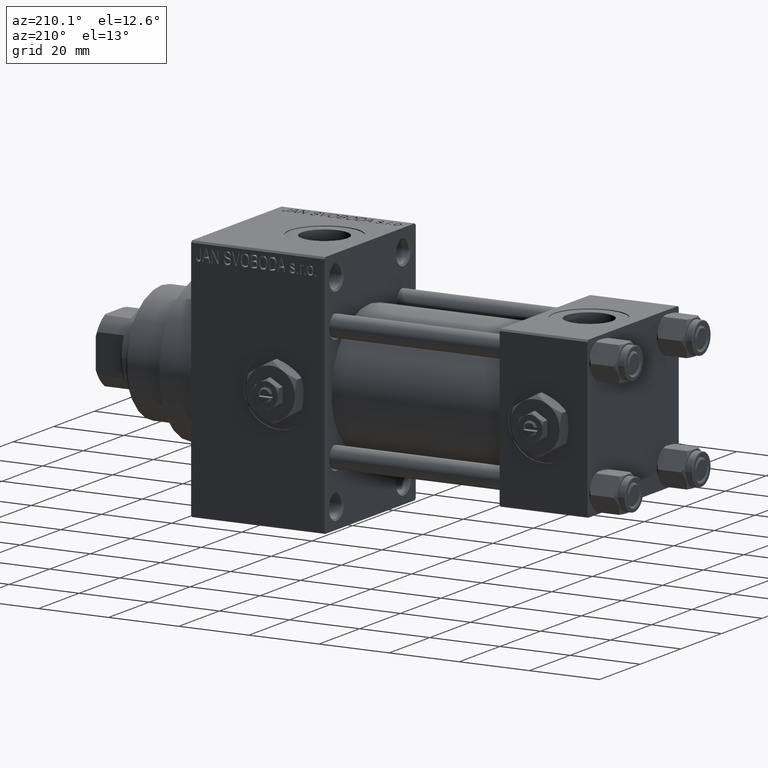
[diagram: clean part render]
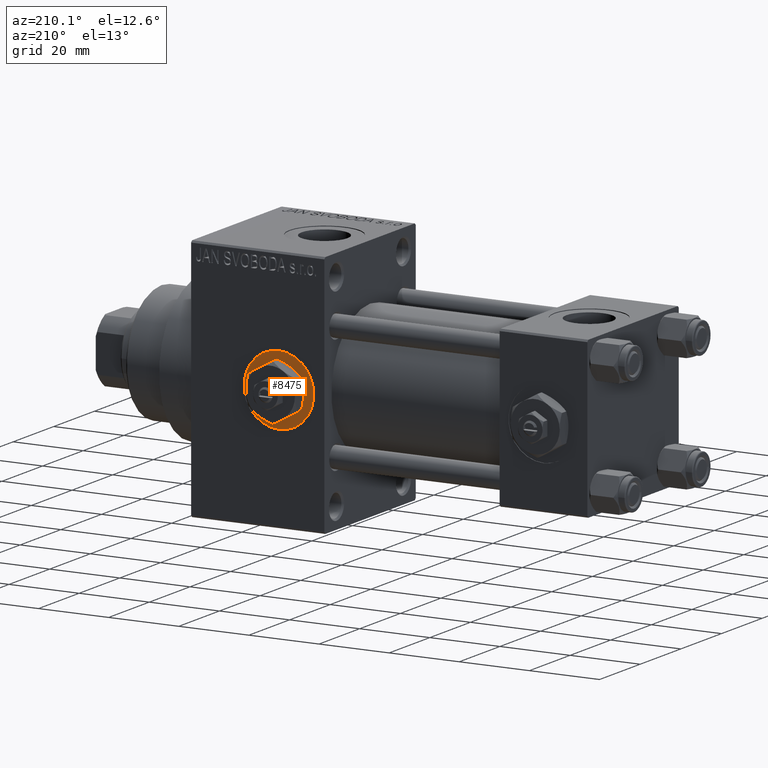
[diagram: same view with one face highlighted and labeled with its STEP entity id]
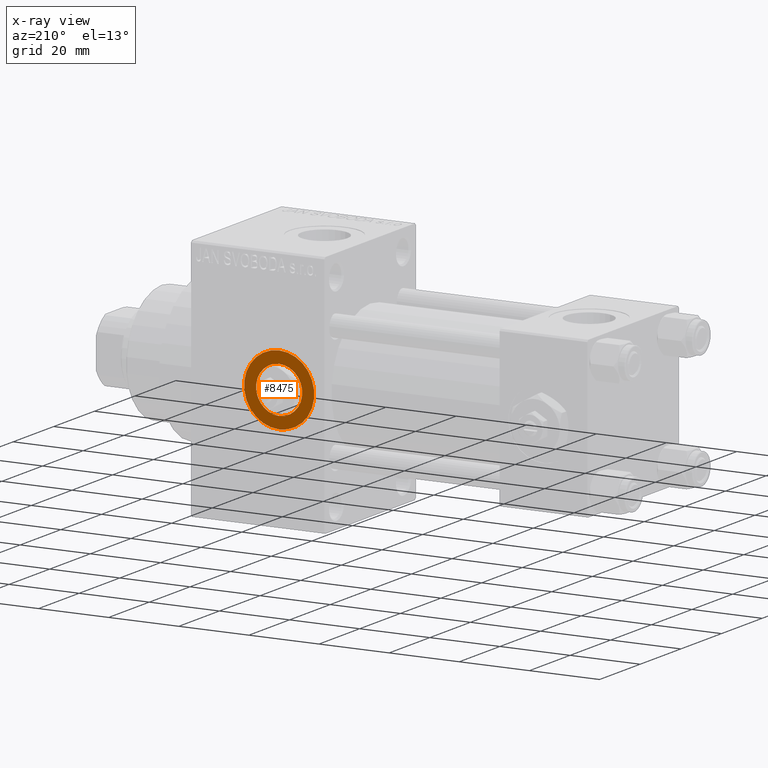
[diagram: x-ray of the same camera — body ghosted, the highlighted face saturated]
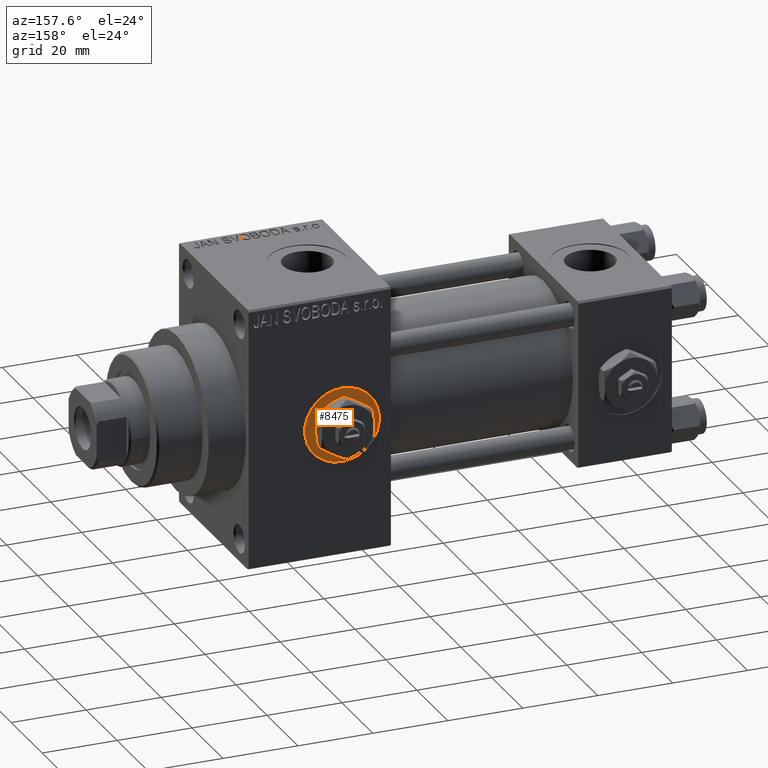
[diagram: same view with one face highlighted and labeled with its STEP entity id]
A machine part, auxiliary view. The second image highlights one B-rep face of the part: STEP entity #8475.
The next image is the same camera in x-ray: the body ghosted, the highlighted face saturated — about 0% of this face is hidden behind the body in this view.
A second angle (auxiliary view) of the same face is appended — the face is thin or edge-on in the first view.
In plain terms, the highlighted planar face has unit normal (0, 1, 0).
Its self-contained STEP definition (entity closure, byte-faithful):
#241 = DIRECTION ( 'NONE',  ( 0.000000000000000000, 1.000000000000000000, 0.000000000000000000 ) ) ;
#1078 = AXIS2_PLACEMENT_3D ( 'NONE', #2771, #48946, #18134 ) ;
#2043 = EDGE_LOOP ( 'NONE', ( #4230, #18125 ) ) ;
#2549 = DIRECTION ( 'NONE',  ( 0.000000000000000000, 1.000000000000000000, 0.000000000000000000 ) ) ;
#2771 = CARTESIAN_POINT ( 'NONE',  ( 88.00000000000001421, 22.29999999999999716, 0.000000000000000000 ) ) ;
#3276 = CARTESIAN_POINT ( 'NONE',  ( 88.00000000000001421, 22.29999999999999716, 0.000000000000000000 ) ) ;
#3595 = EDGE_CURVE ( 'NONE', #22775, #26776, #35691, .T. ) ;
#3729 = FACE_OUTER_BOUND ( 'NONE', #2043, .T. ) ;
#3867 = DIRECTION ( 'NONE',  ( 0.000000000000000000, 0.000000000000000000, 1.000000000000000000 ) ) ;
#4230 = ORIENTED_EDGE ( 'NONE', *, *, #39146, .T. ) ;
#6068 = DIRECTION ( 'NONE',  ( 0.000000000000000000, 1.000000000000000000, 0.000000000000000000 ) ) ;
#6202 = VERTEX_POINT ( 'NONE', #47216 ) ;
#8213 = AXIS2_PLACEMENT_3D ( 'NONE', #39848, #6068, #40328 ) ;
#8475 = ADVANCED_FACE ( 'NONE', ( #37749, #3729 ), #48928, .T. ) ;
#10618 = CIRCLE ( 'NONE', #1078, 6.580000000000002736 ) ;
#11072 = DIRECTION ( 'NONE',  ( 0.000000000000000000, 1.000000000000000000, 0.000000000000000000 ) ) ;
#11825 = CARTESIAN_POINT ( 'NONE',  ( 88.00000000000001421, 22.29999999999999716, -6.580000000000002736 ) ) ;
#14295 = EDGE_LOOP ( 'NONE', ( #19005, #36831 ) ) ;
#14579 = EDGE_CURVE ( 'NONE', #6202, #20337, #24041, .T. ) ;
#15840 = EDGE_CURVE ( 'NONE', #26776, #22775, #10618, .T. ) ;
#18125 = ORIENTED_EDGE ( 'NONE', *, *, #14579, .T. ) ;
#18134 = DIRECTION ( 'NONE',  ( 0.000000000000000000, 0.000000000000000000, 1.000000000000000000 ) ) ;
#18858 = DIRECTION ( 'NONE',  ( 0.000000000000000000, -0.000000000000000000, 1.000000000000000000 ) ) ;
#19005 = ORIENTED_EDGE ( 'NONE', *, *, #15840, .F. ) ;
#20337 = VERTEX_POINT ( 'NONE', #28699 ) ;
#22775 = VERTEX_POINT ( 'NONE', #11825 ) ;
#23203 = CIRCLE ( 'NONE', #25612, 9.999999999999994671 ) ;
#24041 = CIRCLE ( 'NONE', #8213, 9.999999999999994671 ) ;
#25612 = AXIS2_PLACEMENT_3D ( 'NONE', #3276, #2549, #26106 ) ;
#26106 = DIRECTION ( 'NONE',  ( 0.000000000000000000, 0.000000000000000000, 1.000000000000000000 ) ) ;
#26776 = VERTEX_POINT ( 'NONE', #44208 ) ;
#28699 = CARTESIAN_POINT ( 'NONE',  ( 88.00000000000001421, 22.29999999999999716, 9.999999999999994671 ) ) ;
#34671 = CARTESIAN_POINT ( 'NONE',  ( 88.00000000000001421, 22.29999999999999716, 0.000000000000000000 ) ) ;
#35691 = CIRCLE ( 'NONE', #39668, 6.580000000000002736 ) ;
#36831 = ORIENTED_EDGE ( 'NONE', *, *, #3595, .F. ) ;
#37505 = CARTESIAN_POINT ( 'NONE',  ( 88.00000000000001421, 22.29999999999999716, 0.000000000000000000 ) ) ;
#37749 = FACE_BOUND ( 'NONE', #14295, .T. ) ;
#39146 = EDGE_CURVE ( 'NONE', #20337, #6202, #23203, .T. ) ;
#39668 = AXIS2_PLACEMENT_3D ( 'NONE', #34671, #11072, #3867 ) ;
#39848 = CARTESIAN_POINT ( 'NONE',  ( 88.00000000000001421, 22.29999999999999716, 0.000000000000000000 ) ) ;
#40328 = DIRECTION ( 'NONE',  ( 0.000000000000000000, 0.000000000000000000, 1.000000000000000000 ) ) ;
#42106 = AXIS2_PLACEMENT_3D ( 'NONE', #37505, #241, #18858 ) ;
#44208 = CARTESIAN_POINT ( 'NONE',  ( 88.00000000000001421, 22.29999999999999716, 6.580000000000002736 ) ) ;
#47216 = CARTESIAN_POINT ( 'NONE',  ( 88.00000000000001421, 22.29999999999999716, -9.999999999999994671 ) ) ;
#48928 = PLANE ( 'NONE',  #42106 ) ;
#48946 = DIRECTION ( 'NONE',  ( 0.000000000000000000, 1.000000000000000000, 0.000000000000000000 ) ) ;